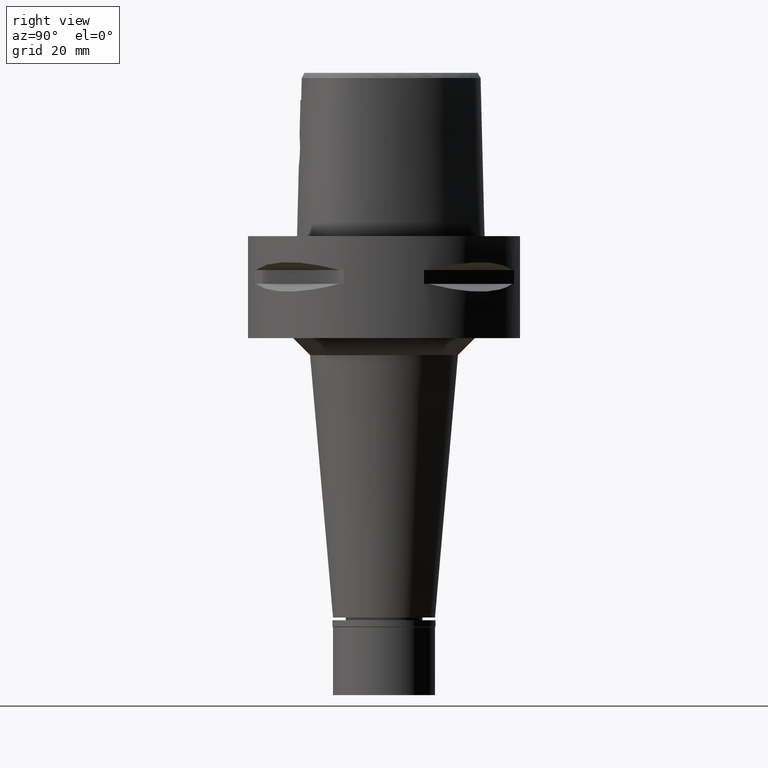
[diagram: clean part render]
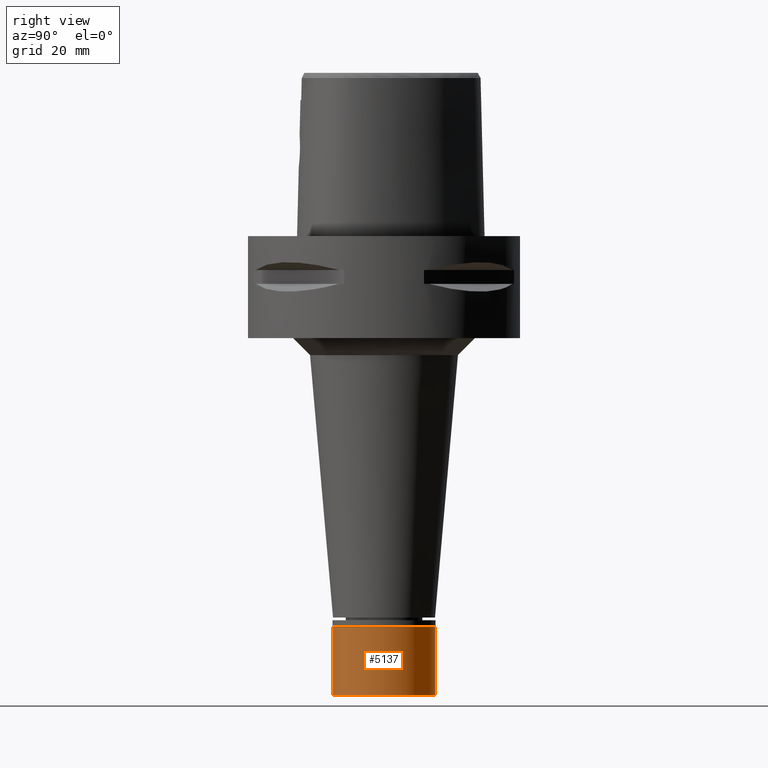
[diagram: same view with one face highlighted and labeled with its STEP entity id]
A machine part, right view. The second image highlights one B-rep face of the part: STEP entity #5137.
In plain terms, the highlighted cylindrical surface (partial cylindrical patch) has radius 15 mm, axis along (0, 0, -1).
Its self-contained STEP definition (entity closure, byte-faithful):
#484 = EDGE_LOOP ( 'NONE', ( #3685, #741, #1446, #3374 ) ) ;
#567 = CARTESIAN_POINT ( 'NONE',  ( 0.0000000000000000000, 0.0000000000000000000, 0.0000000000000000000 ) ) ;
#611 = LINE ( 'NONE', #2199, #2175 ) ;
#741 = ORIENTED_EDGE ( 'NONE', *, *, #1761, .T. ) ;
#858 = AXIS2_PLACEMENT_3D ( 'NONE', #3870, #1891, #3479 ) ;
#918 = CARTESIAN_POINT ( 'NONE',  ( 0.0000000000000000000, -15.00000000000000000, -22.00000000000000000 ) ) ;
#957 = CARTESIAN_POINT ( 'NONE',  ( 0.0000000000000000000, 15.00000000000000000, -2.000000000000000000 ) ) ;
#1353 = DIRECTION ( 'NONE',  ( 0.0000000000000000000, -1.000000000000000000, 0.0000000000000000000 ) ) ;
#1446 = ORIENTED_EDGE ( 'NONE', *, *, #3506, .T. ) ;
#1507 = EDGE_CURVE ( 'NONE', #3753, #4594, #4909, .T. ) ;
#1761 = EDGE_CURVE ( 'NONE', #4594, #1780, #611, .T. ) ;
#1780 = VERTEX_POINT ( 'NONE', #918 ) ;
#1891 = DIRECTION ( 'NONE',  ( 0.0000000000000000000, 0.0000000000000000000, 1.000000000000000000 ) ) ;
#1997 = CARTESIAN_POINT ( 'NONE',  ( 0.0000000000000000000, 15.00000000000000000, -2.000000000000000000 ) ) ;
#2085 = DIRECTION ( 'NONE',  ( 0.0000000000000000000, 0.0000000000000000000, -1.000000000000000000 ) ) ;
#2169 = AXIS2_PLACEMENT_3D ( 'NONE', #3177, #4789, #2802 ) ;
#2175 = VECTOR ( 'NONE', #2085, 1000.000000000000000 ) ;
#2199 = CARTESIAN_POINT ( 'NONE',  ( 0.0000000000000000000, -15.00000000000000000, -2.000000000000000000 ) ) ;
#2438 = CIRCLE ( 'NONE', #858, 15.00000000000000000 ) ;
#2545 = CYLINDRICAL_SURFACE ( 'NONE', #4923, 15.00000000000000000 ) ;
#2802 = DIRECTION ( 'NONE',  ( 0.0000000000000000000, 1.000000000000000000, 0.0000000000000000000 ) ) ;
#3177 = CARTESIAN_POINT ( 'NONE',  ( 0.0000000000000000000, 0.0000000000000000000, -2.000000000000000000 ) ) ;
#3219 = CARTESIAN_POINT ( 'NONE',  ( 0.0000000000000000000, 15.00000000000000000, -22.00000000000000000 ) ) ;
#3244 = LINE ( 'NONE', #957, #4927 ) ;
#3374 = ORIENTED_EDGE ( 'NONE', *, *, #4025, .F. ) ;
#3479 = DIRECTION ( 'NONE',  ( 0.0000000000000000000, -1.000000000000000000, 0.0000000000000000000 ) ) ;
#3506 = EDGE_CURVE ( 'NONE', #1780, #3566, #2438, .T. ) ;
#3566 = VERTEX_POINT ( 'NONE', #3219 ) ;
#3685 = ORIENTED_EDGE ( 'NONE', *, *, #1507, .T. ) ;
#3753 = VERTEX_POINT ( 'NONE', #1997 ) ;
#3870 = CARTESIAN_POINT ( 'NONE',  ( 0.0000000000000000000, 0.0000000000000000000, -22.00000000000000000 ) ) ;
#3880 = CARTESIAN_POINT ( 'NONE',  ( 0.0000000000000000000, -15.00000000000000000, -2.000000000000000000 ) ) ;
#4025 = EDGE_CURVE ( 'NONE', #3753, #3566, #3244, .T. ) ;
#4028 = DIRECTION ( 'NONE',  ( 0.0000000000000000000, 0.0000000000000000000, -1.000000000000000000 ) ) ;
#4551 = DIRECTION ( 'NONE',  ( 0.0000000000000000000, 0.0000000000000000000, -1.000000000000000000 ) ) ;
#4594 = VERTEX_POINT ( 'NONE', #3880 ) ;
#4789 = DIRECTION ( 'NONE',  ( 0.0000000000000000000, 0.0000000000000000000, -1.000000000000000000 ) ) ;
#4909 = CIRCLE ( 'NONE', #2169, 15.00000000000000000 ) ;
#4912 = FACE_OUTER_BOUND ( 'NONE', #484, .T. ) ;
#4923 = AXIS2_PLACEMENT_3D ( 'NONE', #567, #4551, #1353 ) ;
#4927 = VECTOR ( 'NONE', #4028, 1000.000000000000000 ) ;
#5137 = ADVANCED_FACE ( 'NONE', ( #4912 ), #2545, .T. ) ;